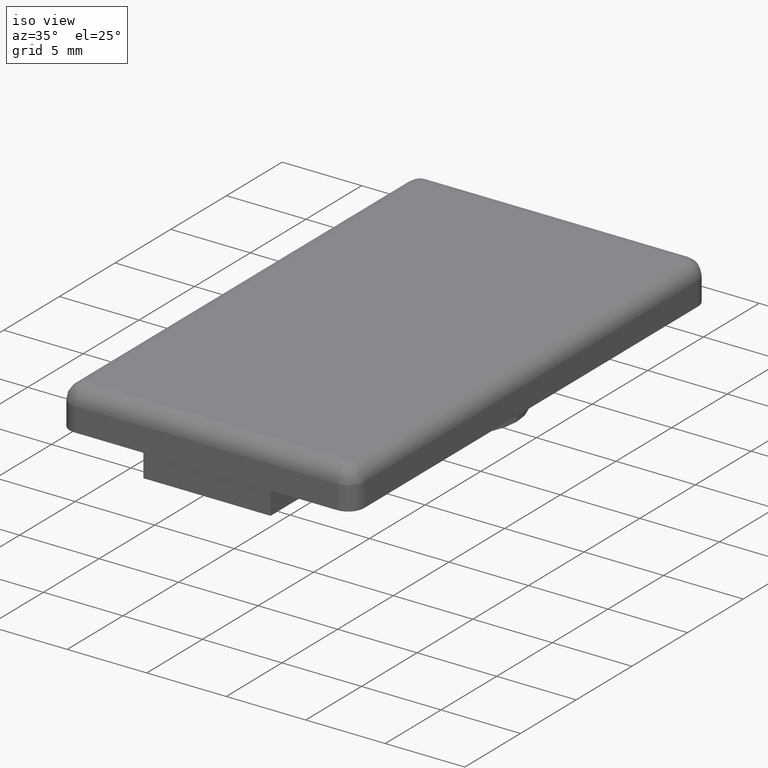
[diagram: clean part render]
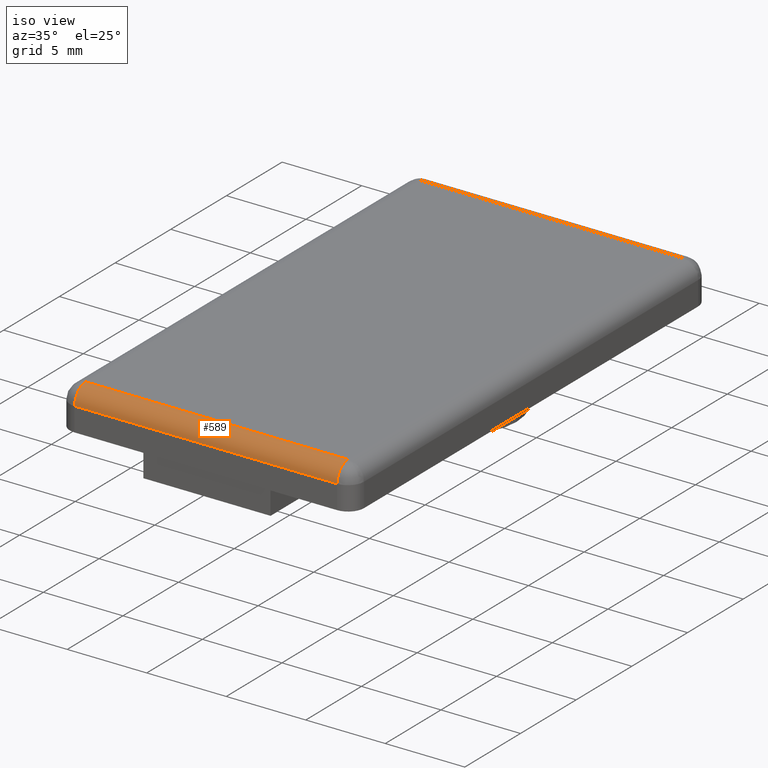
[diagram: same view with one face highlighted and labeled with its STEP entity id]
A machine part, iso view. The second image highlights one B-rep face of the part: STEP entity #589.
In plain terms, the highlighted cylindrical surface (edge-blend (fillet) strip) has radius 1 mm, axis along (-1, 0, 0).
Its self-contained STEP definition (entity closure, byte-faithful):
#137=CARTESIAN_POINT('',(8.249999999963166,-21.549999999913780,2.499999999989996));
#138=VERTEX_POINT('',#137);
#155=CARTESIAN_POINT('',(-8.249999999966803,-21.549999999909687,2.499999999989996));
#156=VERTEX_POINT('',#155);
#163=CARTESIAN_POINT('',(-8.249999999966803,-21.549999999909687,2.499999999989996));
#164=DIRECTION('',(1.0,0.0,0.0));
#165=VECTOR('',#164,16.499999999934062);
#166=LINE('',#163,#165);
#167=EDGE_CURVE('',#156,#138,#166,.T.);
#258=CARTESIAN_POINT('',(-8.249999999966803,-22.549999999909687,1.499999999989996));
#259=VERTEX_POINT('',#258);
#282=CARTESIAN_POINT('',(8.249999999967258,-22.549999999909687,1.499999999989996));
#283=VERTEX_POINT('',#282);
#290=CARTESIAN_POINT('',(-8.249999999966803,-22.549999999909687,1.499999999989996));
#291=DIRECTION('',(1.0,0.0,0.0));
#292=VECTOR('',#291,16.499999999934062);
#293=LINE('',#290,#292);
#294=EDGE_CURVE('',#259,#283,#293,.T.);
#561=CARTESIAN_POINT('',(8.249999999967258,-21.549999999913780,1.499999999989996));
#562=DIRECTION('',(-1.0,0.0,0.0));
#563=DIRECTION('',(0.0,-1.0,0.0));
#564=AXIS2_PLACEMENT_3D('',#561,#562,#563);
#565=CIRCLE('',#564,0.999999999995907);
#566=EDGE_CURVE('',#283,#138,#565,.T.);
#572=CARTESIAN_POINT('',(-8.249999999966803,-21.549999999909687,1.499999999989996));
#573=DIRECTION('',(-1.0,0.0,0.0));
#574=DIRECTION('',(0.0,-1.0,0.0));
#575=AXIS2_PLACEMENT_3D('',#572,#573,#574);
#576=CYLINDRICAL_SURFACE('',#575,1.0);
#577=ORIENTED_EDGE('',*,*,#566,.T.);
#578=ORIENTED_EDGE('',*,*,#167,.F.);
#579=CARTESIAN_POINT('',(-8.249999999966803,-21.549999999909687,1.499999999989996));
#580=DIRECTION('',(-1.0,0.0,0.0));
#581=DIRECTION('',(0.0,-1.0,0.0));
#582=AXIS2_PLACEMENT_3D('',#579,#580,#581);
#583=CIRCLE('',#582,1.0);
#584=EDGE_CURVE('',#259,#156,#583,.T.);
#585=ORIENTED_EDGE('',*,*,#584,.F.);
#586=ORIENTED_EDGE('',*,*,#294,.T.);
#587=EDGE_LOOP('',(#577,#578,#585,#586));
#588=FACE_OUTER_BOUND('',#587,.T.);
#589=ADVANCED_FACE('',(#588),#576,.T.);